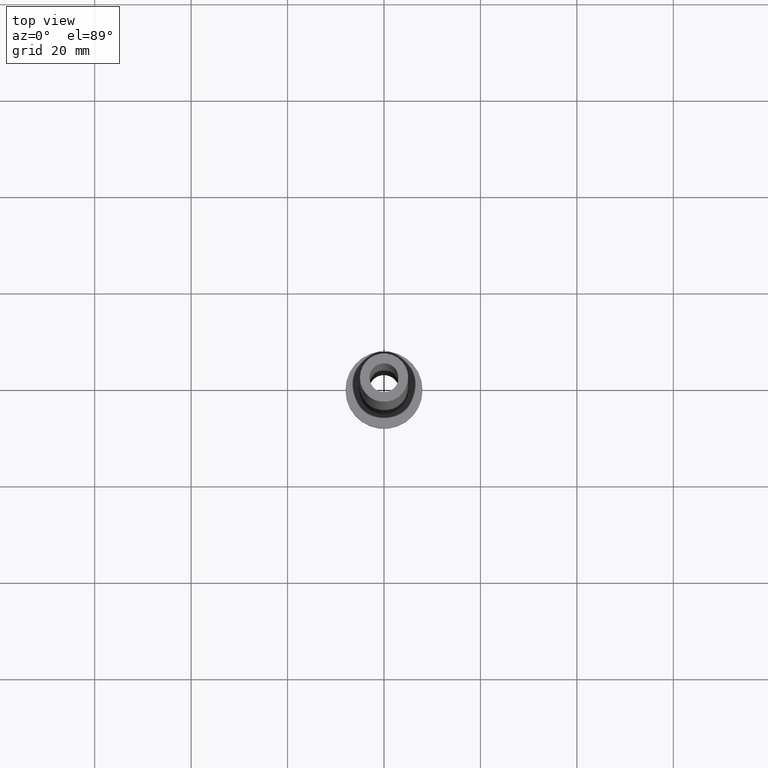
[diagram: clean part render]
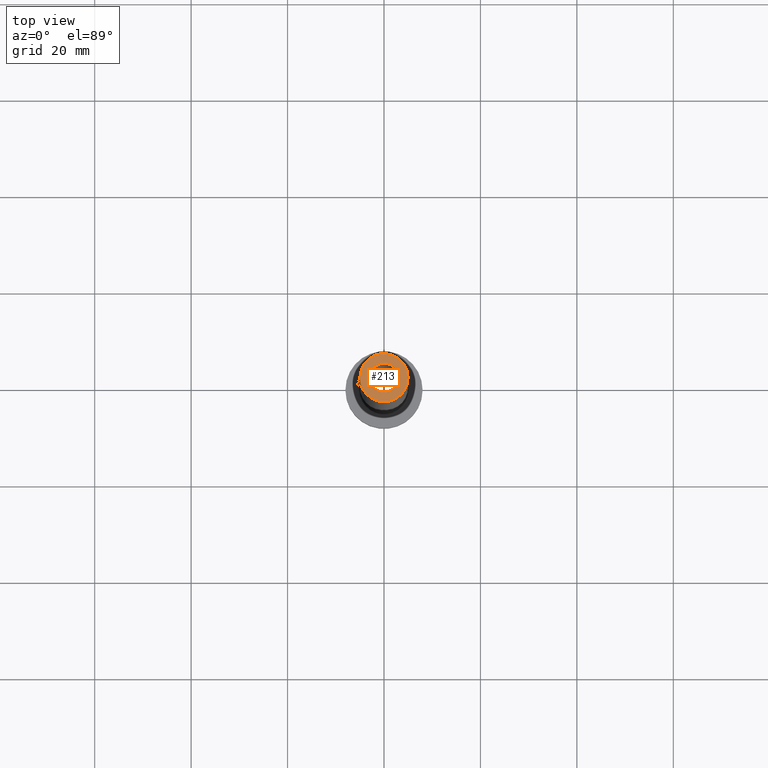
[diagram: same view with one face highlighted and labeled with its STEP entity id]
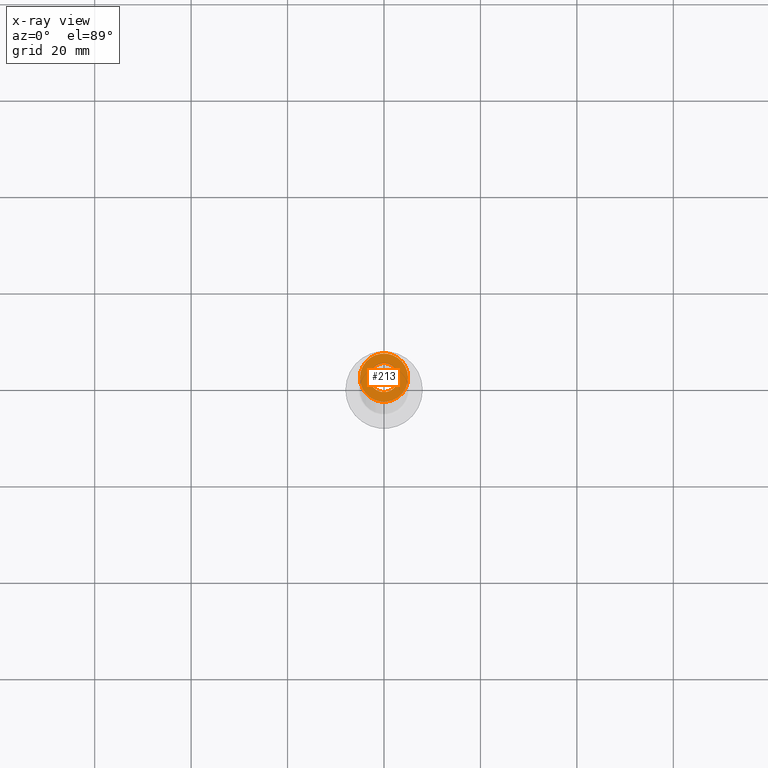
[diagram: x-ray of the same camera — body ghosted, the highlighted face saturated]
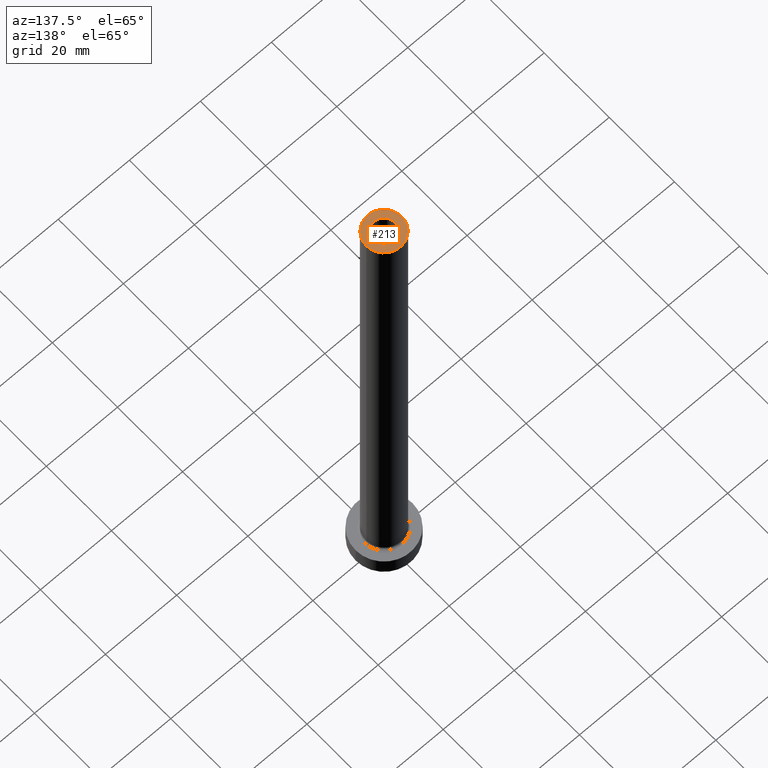
[diagram: same view with one face highlighted and labeled with its STEP entity id]
A machine part, top view. The second image highlights one B-rep face of the part: STEP entity #213.
The next image is the same camera in x-ray: the body ghosted, the highlighted face saturated — about 0% of this face is hidden behind the body in this view.
A second angle (auxiliary view) of the same face is appended — the face is thin or edge-on in the first view.
In plain terms, the highlighted planar face has unit normal (0, 0, 1).
Its self-contained STEP definition (entity closure, byte-faithful):
#1 = DIRECTION ( 'NONE',  ( 1.000000000000000000, 0.000000000000000000, 0.000000000000000000 ) ) ;
#5 = CARTESIAN_POINT ( 'NONE',  ( 5.000000000000000000, 6.123233995736766282E-16, 150.0000000000000000 ) ) ;
#22 = PLANE ( 'NONE',  #114 ) ;
#23 = ORIENTED_EDGE ( 'NONE', *, *, #234, .T. ) ;
#28 = CARTESIAN_POINT ( 'NONE',  ( 0.000000000000000000, 0.000000000000000000, 150.0000000000000000 ) ) ;
#33 = AXIS2_PLACEMENT_3D ( 'NONE', #40, #51, #117 ) ;
#40 = CARTESIAN_POINT ( 'NONE',  ( 0.000000000000000000, 0.000000000000000000, 150.0000000000000000 ) ) ;
#42 = CARTESIAN_POINT ( 'NONE',  ( -3.000000000000000444, 0.000000000000000000, 150.0000000000000000 ) ) ;
#51 = DIRECTION ( 'NONE',  ( 0.000000000000000000, 0.000000000000000000, 1.000000000000000000 ) ) ;
#55 = CIRCLE ( 'NONE', #250, 5.000000000000000000 ) ;
#78 = CARTESIAN_POINT ( 'NONE',  ( 3.000000000000000444, 3.673940397442059868E-16, 150.0000000000000000 ) ) ;
#84 = VERTEX_POINT ( 'NONE', #42 ) ;
#114 = AXIS2_PLACEMENT_3D ( 'NONE', #28, #331, #305 ) ;
#117 = DIRECTION ( 'NONE',  ( 1.000000000000000000, 0.000000000000000000, 0.000000000000000000 ) ) ;
#140 = DIRECTION ( 'NONE',  ( 1.000000000000000000, 0.000000000000000000, 0.000000000000000000 ) ) ;
#146 = FACE_BOUND ( 'NONE', #450, .T. ) ;
#160 = EDGE_CURVE ( 'NONE', #329, #325, #351, .T. ) ;
#165 = EDGE_CURVE ( 'NONE', #177, #84, #236, .T. ) ;
#170 = DIRECTION ( 'NONE',  ( 0.000000000000000000, 0.000000000000000000, 1.000000000000000000 ) ) ;
#176 = CARTESIAN_POINT ( 'NONE',  ( 0.000000000000000000, 0.000000000000000000, 150.0000000000000000 ) ) ;
#177 = VERTEX_POINT ( 'NONE', #78 ) ;
#187 = CARTESIAN_POINT ( 'NONE',  ( 0.000000000000000000, 0.000000000000000000, 150.0000000000000000 ) ) ;
#188 = CARTESIAN_POINT ( 'NONE',  ( -5.000000000000000000, 0.000000000000000000, 150.0000000000000000 ) ) ;
#207 = DIRECTION ( 'NONE',  ( 1.000000000000000000, 0.000000000000000000, 0.000000000000000000 ) ) ;
#213 = ADVANCED_FACE ( 'NONE', ( #146, #343 ), #22, .T. ) ;
#223 = EDGE_CURVE ( 'NONE', #84, #177, #302, .T. ) ;
#234 = EDGE_CURVE ( 'NONE', #325, #329, #55, .T. ) ;
#236 = CIRCLE ( 'NONE', #33, 3.000000000000000444 ) ;
#250 = AXIS2_PLACEMENT_3D ( 'NONE', #176, #170, #207 ) ;
#263 = CARTESIAN_POINT ( 'NONE',  ( 0.000000000000000000, 0.000000000000000000, 150.0000000000000000 ) ) ;
#269 = DIRECTION ( 'NONE',  ( 0.000000000000000000, 0.000000000000000000, 1.000000000000000000 ) ) ;
#299 = ORIENTED_EDGE ( 'NONE', *, *, #223, .F. ) ;
#302 = CIRCLE ( 'NONE', #413, 3.000000000000000444 ) ;
#305 = DIRECTION ( 'NONE',  ( 1.000000000000000000, 0.000000000000000000, -0.000000000000000000 ) ) ;
#322 = ORIENTED_EDGE ( 'NONE', *, *, #160, .T. ) ;
#325 = VERTEX_POINT ( 'NONE', #188 ) ;
#329 = VERTEX_POINT ( 'NONE', #5 ) ;
#331 = DIRECTION ( 'NONE',  ( 0.000000000000000000, 0.000000000000000000, 1.000000000000000000 ) ) ;
#337 = ORIENTED_EDGE ( 'NONE', *, *, #165, .F. ) ;
#343 = FACE_OUTER_BOUND ( 'NONE', #420, .T. ) ;
#351 = CIRCLE ( 'NONE', #387, 5.000000000000000000 ) ;
#387 = AXIS2_PLACEMENT_3D ( 'NONE', #187, #392, #1 ) ;
#392 = DIRECTION ( 'NONE',  ( 0.000000000000000000, 0.000000000000000000, 1.000000000000000000 ) ) ;
#413 = AXIS2_PLACEMENT_3D ( 'NONE', #263, #269, #140 ) ;
#420 = EDGE_LOOP ( 'NONE', ( #23, #322 ) ) ;
#450 = EDGE_LOOP ( 'NONE', ( #299, #337 ) ) ;